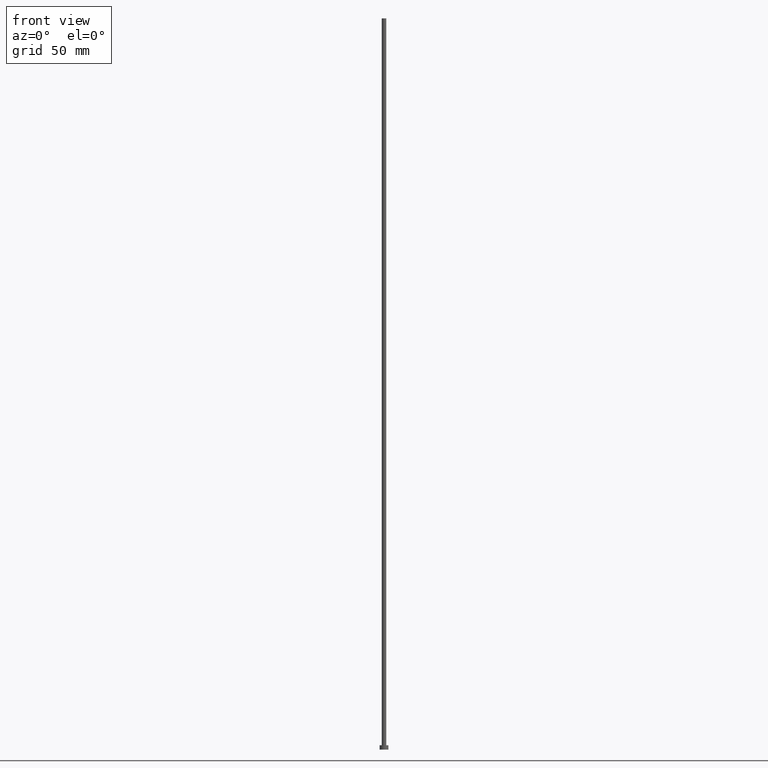
[diagram: clean part render]
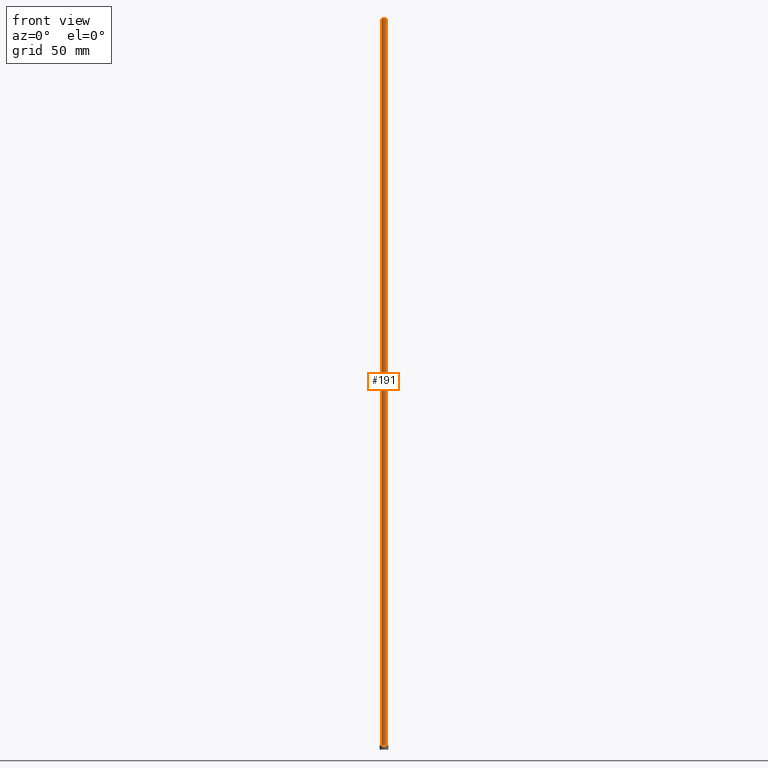
[diagram: same view with one face highlighted and labeled with its STEP entity id]
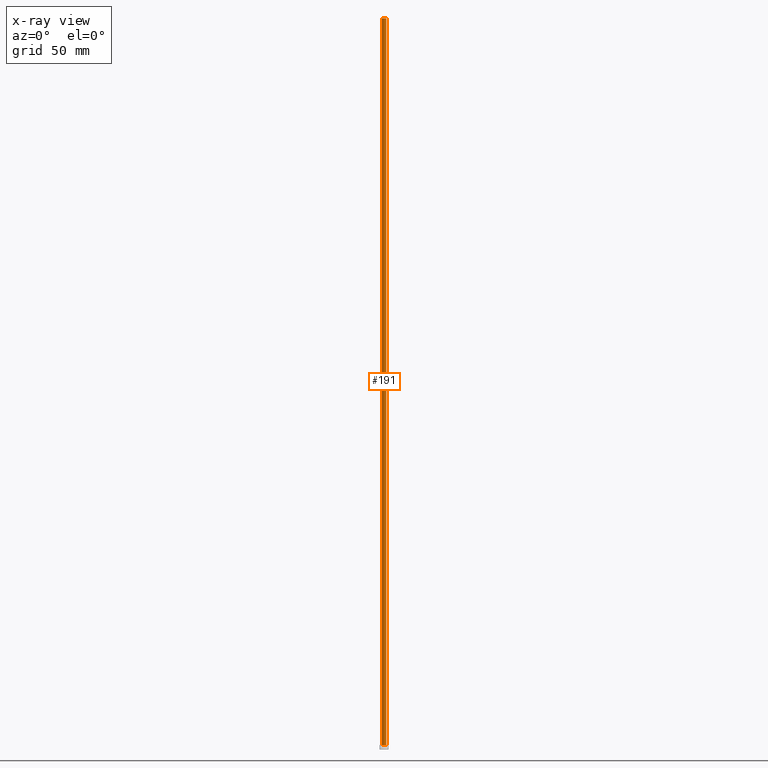
[diagram: x-ray of the same camera — body ghosted, the highlighted face saturated]
A machine part, front view. The second image highlights one B-rep face of the part: STEP entity #191.
The next image is the same camera in x-ray: the body ghosted, the highlighted face saturated — about 0% of this face is hidden behind the body in this view.
In plain terms, the highlighted cylindrical surface (edge-blend (fillet) strip) has radius 1.5 mm, axis along (-0, -0, -1).
Its self-contained STEP definition (entity closure, byte-faithful):
#5 = VERTEX_POINT ( 'NONE', #154 ) ;
#6 = CARTESIAN_POINT ( 'NONE',  ( -1.500000000000000222, 0.000000000000000000, 3.000000000000000000 ) ) ;
#22 = CARTESIAN_POINT ( 'NONE',  ( 0.000000000000000000, 0.000000000000000000, 500.0000000000000000 ) ) ;
#23 = ORIENTED_EDGE ( 'NONE', *, *, #139, .T. ) ;
#30 = VECTOR ( 'NONE', #73, 1000.000000000000000 ) ;
#34 = EDGE_LOOP ( 'NONE', ( #176, #222, #23, #123 ) ) ;
#63 = CIRCLE ( 'NONE', #201, 1.500000000000000222 ) ;
#70 = DIRECTION ( 'NONE',  ( 1.000000000000000000, 0.000000000000000000, 0.000000000000000000 ) ) ;
#71 = EDGE_CURVE ( 'NONE', #91, #5, #63, .T. ) ;
#73 = DIRECTION ( 'NONE',  ( -0.000000000000000000, -0.000000000000000000, -1.000000000000000000 ) ) ;
#82 = CARTESIAN_POINT ( 'NONE',  ( 0.000000000000000000, 0.000000000000000000, 3.000000000000000000 ) ) ;
#88 = LINE ( 'NONE', #245, #30 ) ;
#91 = VERTEX_POINT ( 'NONE', #6 ) ;
#95 = VERTEX_POINT ( 'NONE', #187 ) ;
#102 = DIRECTION ( 'NONE',  ( -0.000000000000000000, -0.000000000000000000, -1.000000000000000000 ) ) ;
#105 = DIRECTION ( 'NONE',  ( 0.000000000000000000, 0.000000000000000000, 1.000000000000000000 ) ) ;
#111 = CIRCLE ( 'NONE', #145, 1.500000000000000222 ) ;
#116 = VECTOR ( 'NONE', #102, 1000.000000000000000 ) ;
#119 = DIRECTION ( 'NONE',  ( 1.000000000000000000, 0.000000000000000000, 0.000000000000000000 ) ) ;
#122 = VERTEX_POINT ( 'NONE', #158 ) ;
#123 = ORIENTED_EDGE ( 'NONE', *, *, #71, .T. ) ;
#139 = EDGE_CURVE ( 'NONE', #122, #91, #164, .T. ) ;
#145 = AXIS2_PLACEMENT_3D ( 'NONE', #22, #216, #119 ) ;
#147 = FACE_OUTER_BOUND ( 'NONE', #34, .T. ) ;
#154 = CARTESIAN_POINT ( 'NONE',  ( 1.500000000000000222, 1.836970198721029934E-16, 3.000000000000000000 ) ) ;
#158 = CARTESIAN_POINT ( 'NONE',  ( -1.500000000000000222, 0.000000000000000000, 500.0000000000000000 ) ) ;
#164 = LINE ( 'NONE', #218, #116 ) ;
#168 = DIRECTION ( 'NONE',  ( -0.000000000000000000, -0.000000000000000000, -1.000000000000000000 ) ) ;
#169 = EDGE_CURVE ( 'NONE', #122, #95, #111, .T. ) ;
#176 = ORIENTED_EDGE ( 'NONE', *, *, #197, .F. ) ;
#187 = CARTESIAN_POINT ( 'NONE',  ( 1.500000000000000222, 1.836970198721029934E-16, 500.0000000000000000 ) ) ;
#191 = ADVANCED_FACE ( 'NONE', ( #147 ), #208, .T. ) ;
#194 = DIRECTION ( 'NONE',  ( -1.000000000000000000, 0.000000000000000000, 0.000000000000000000 ) ) ;
#197 = EDGE_CURVE ( 'NONE', #95, #5, #88, .T. ) ;
#201 = AXIS2_PLACEMENT_3D ( 'NONE', #82, #105, #70 ) ;
#206 = AXIS2_PLACEMENT_3D ( 'NONE', #225, #168, #194 ) ;
#208 = CYLINDRICAL_SURFACE ( 'NONE', #206, 1.500000000000000222 ) ;
#216 = DIRECTION ( 'NONE',  ( 0.000000000000000000, 0.000000000000000000, 1.000000000000000000 ) ) ;
#218 = CARTESIAN_POINT ( 'NONE',  ( -1.500000000000000222, 0.000000000000000000, 500.0000000000000000 ) ) ;
#222 = ORIENTED_EDGE ( 'NONE', *, *, #169, .F. ) ;
#225 = CARTESIAN_POINT ( 'NONE',  ( 0.000000000000000000, 0.000000000000000000, 500.0000000000000000 ) ) ;
#245 = CARTESIAN_POINT ( 'NONE',  ( 1.500000000000000222, 1.836970198721029934E-16, 500.0000000000000000 ) ) ;